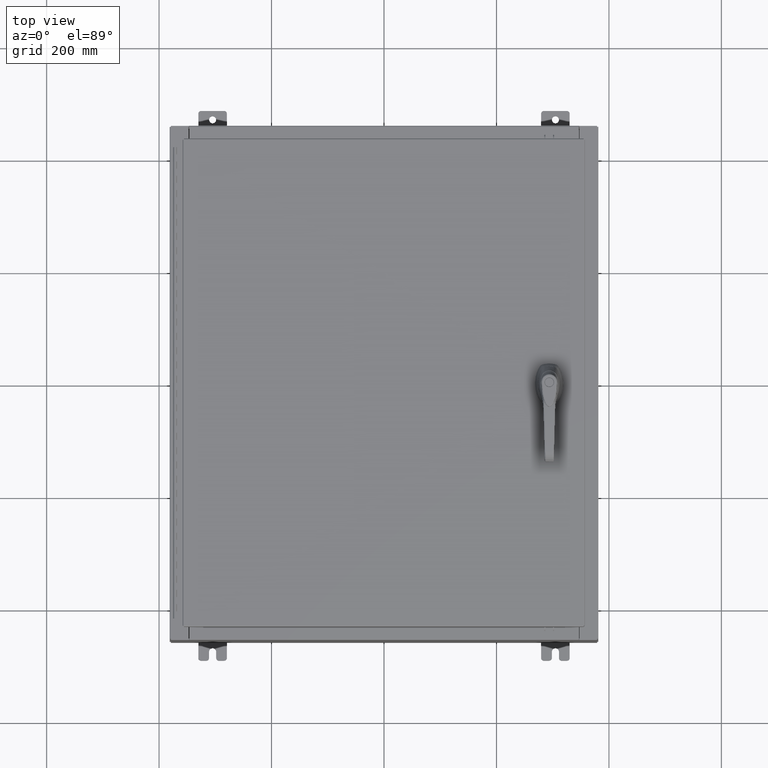
[diagram: clean part render]
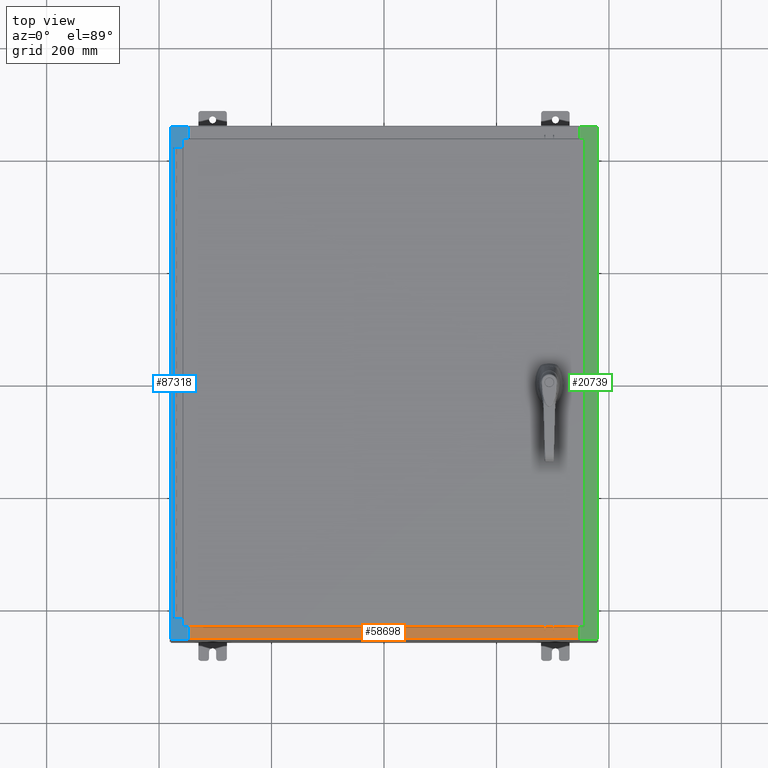
[diagram: same view with three faces highlighted in distinct colors, each labeled with its STEP entity id]
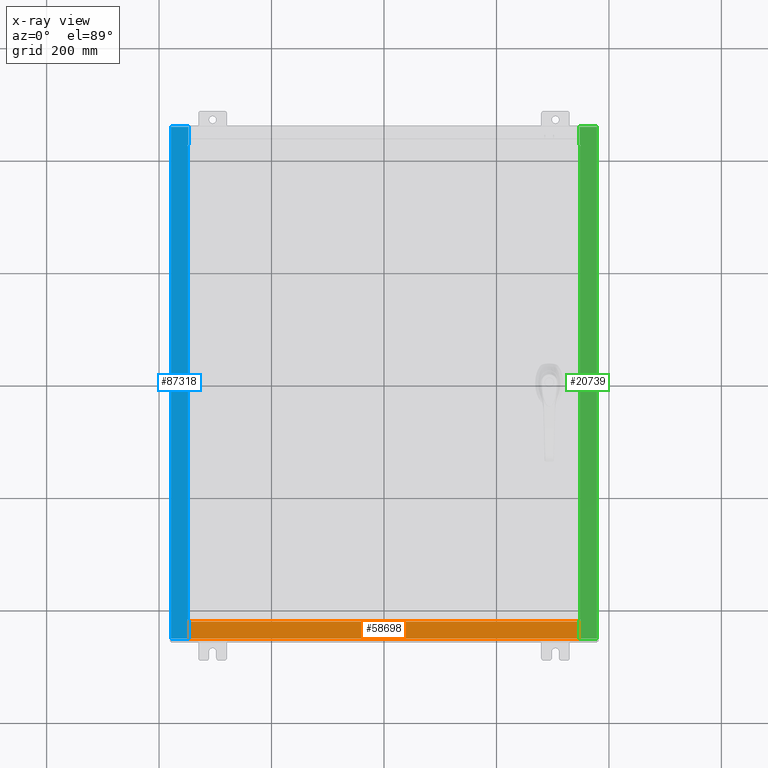
[diagram: x-ray of the same camera — body ghosted, the three highlighted faces saturated]
A machine part, top view with three faces highlighted in distinct colors.
The next image is the same camera in x-ray (body ghosted, the three faces saturated) — at least one of them is partly hidden behind the body in this view.
Their STEP definitions:

[orange] entity #58698 — the highlighted planar face has unit normal (-0, -0, 1).
#1316 = ORIENTED_EDGE ( 'NONE', *, *, #13318, .F. ) ;
#3166 = EDGE_CURVE ( 'NONE', #69091, #89406, #43542, .T. ) ;
#6162 = VECTOR ( 'NONE', #72674, 39.37007874015748100 ) ;
#6867 = DIRECTION ( 'NONE',  ( 0.0000000000000000000, -1.000000000000000000, 3.566381192773190000E-015 ) ) ;
#10266 = CARTESIAN_POINT ( 'NONE',  ( -13.63719999999999800, -1.287299999999999200, 6.000000000000003600 ) ) ;
#10968 = DIRECTION ( 'NONE',  ( -1.000000000000000000, 4.006464660875052000E-017, -1.428858021605520200E-031 ) ) ;
#13318 = EDGE_CURVE ( 'NONE', #89406, #30030, #45279, .T. ) ;
#16070 = PLANE ( 'NONE',  #75212 ) ;
#17727 = FACE_OUTER_BOUND ( 'NONE', #68220, .T. ) ;
#24306 = CARTESIAN_POINT ( 'NONE',  ( 13.63720000000000400, -0.08769999999999937600, 5.999999999999999100 ) ) ;
#30030 = VERTEX_POINT ( 'NONE', #10266 ) ;
#36265 = DIRECTION ( 'NONE',  ( -0.0000000000000000000, -1.000000000000000000, 3.566381192773190000E-015 ) ) ;
#43542 = LINE ( 'NONE', #103385, #63047 ) ;
#45279 = LINE ( 'NONE', #107639, #96254 ) ;
#46158 = CARTESIAN_POINT ( 'NONE',  ( -13.63719999999999800, -0.08769999999999972300, 5.999999999999999100 ) ) ;
#53368 = CARTESIAN_POINT ( 'NONE',  ( -13.63719999999999800, -0.07469999999999973900, 5.999999999999999100 ) ) ;
#58698 = ADVANCED_FACE ( 'NONE', ( #17727 ), #16070, .T. ) ;
#62827 = EDGE_CURVE ( 'NONE', #30030, #79166, #79658, .T. ) ;
#63047 = VECTOR ( 'NONE', #36265, 39.37007874015748100 ) ;
#64316 = DIRECTION ( 'NONE',  ( 0.0000000000000000000, 3.566381192773190000E-015, 1.000000000000000000 ) ) ;
#68220 = EDGE_LOOP ( 'NONE', ( #71506, #1316, #116477, #120204 ) ) ;
#69091 = VERTEX_POINT ( 'NONE', #24306 ) ;
#71506 = ORIENTED_EDGE ( 'NONE', *, *, #62827, .F. ) ;
#72674 = DIRECTION ( 'NONE',  ( -0.0000000000000000000, 1.000000000000000000, -3.566381192773190000E-015 ) ) ;
#75212 = AXIS2_PLACEMENT_3D ( 'NONE', #121368, #64316, #6867 ) ;
#79166 = VERTEX_POINT ( 'NONE', #46158 ) ;
#79658 = LINE ( 'NONE', #53368, #6162 ) ;
#87735 = CARTESIAN_POINT ( 'NONE',  ( -3.513669507588266700E-018, -0.08769999999999972300, 5.999999999999999100 ) ) ;
#88482 = EDGE_CURVE ( 'NONE', #69091, #79166, #107102, .T. ) ;
#89406 = VERTEX_POINT ( 'NONE', #117419 ) ;
#96254 = VECTOR ( 'NONE', #97963, 39.37007874015748100 ) ;
#97963 = DIRECTION ( 'NONE',  ( -1.000000000000000000, 0.0000000000000000000, 0.0000000000000000000 ) ) ;
#103385 = CARTESIAN_POINT ( 'NONE',  ( 13.63720000000000400, -1.300299999999999800, 6.000000000000003600 ) ) ;
#107102 = LINE ( 'NONE', #87735, #119106 ) ;
#107639 = CARTESIAN_POINT ( 'NONE',  ( 13.63720000000000400, -1.287299999999999900, 6.000000000000003600 ) ) ;
#116477 = ORIENTED_EDGE ( 'NONE', *, *, #3166, .F. ) ;
#117419 = CARTESIAN_POINT ( 'NONE',  ( 13.63720000000000400, -1.287299999999999900, 6.000000000000003600 ) ) ;
#119106 = VECTOR ( 'NONE', #10968, 39.37007874015748100 ) ;
#120204 = ORIENTED_EDGE ( 'NONE', *, *, #88482, .T. ) ;
#121368 = CARTESIAN_POINT ( 'NONE',  ( 0.0000000000000000000, 2.139269213755056400E-014, 5.999999999999999100 ) ) ;

[blue] entity #87318 — the highlighted planar face has unit normal (0, 0, -1).
#397 = CARTESIAN_POINT ( 'NONE',  ( -13.75005000000004400, -16.63109999999998600, 11.92530000000001200 ) ) ;
#2797 = EDGE_CURVE ( 'NONE', #21384, #100856, #90106, .T. ) ;
#3899 = VECTOR ( 'NONE', #93490, 39.37007874015748100 ) ;
#7318 = VERTEX_POINT ( 'NONE', #9506 ) ;
#9506 = CARTESIAN_POINT ( 'NONE',  ( -14.91230000000004500, -17.92530000000000000, 11.92530000000000000 ) ) ;
#9951 = DIRECTION ( 'NONE',  ( 1.000000000000000000, 0.0000000000000000000, 0.0000000000000000000 ) ) ;
#10876 = CARTESIAN_POINT ( 'NONE',  ( -13.69970000000004400, -17.92530000000000000, 11.92530000000000900 ) ) ;
#11484 = ORIENTED_EDGE ( 'NONE', *, *, #124181, .F. ) ;
#12284 = CARTESIAN_POINT ( 'NONE',  ( -13.69970000000004400, 16.63110000000000000, 11.92530000000000900 ) ) ;
#12709 = DIRECTION ( 'NONE',  ( 0.0000000000000000000, 1.000000000000000000, 0.0000000000000000000 ) ) ;
#13146 = DIRECTION ( 'NONE',  ( -7.132762385546384700E-015, -0.0000000000000000000, 1.000000000000000000 ) ) ;
#13319 = EDGE_CURVE ( 'NONE', #7318, #42945, #22707, .T. ) ;
#14062 = CARTESIAN_POINT ( 'NONE',  ( -13.75005000000004400, 16.61242500000000200, 11.92530000000001200 ) ) ;
#15678 = ORIENTED_EDGE ( 'NONE', *, *, #42679, .F. ) ;
#16841 = VERTEX_POINT ( 'NONE', #31089 ) ;
#20140 = VECTOR ( 'NONE', #117360, 39.37007874015748100 ) ;
#20360 = VECTOR ( 'NONE', #79840, 39.37007874015748100 ) ;
#21384 = VERTEX_POINT ( 'NONE', #12284 ) ;
#22707 = LINE ( 'NONE', #69446, #25744 ) ;
#23441 = VERTEX_POINT ( 'NONE', #90968 ) ;
#23741 = DIRECTION ( 'NONE',  ( 1.000000000000000000, 0.0000000000000000000, 0.0000000000000000000 ) ) ;
#25744 = VECTOR ( 'NONE', #79102, 39.37007874015748100 ) ;
#26040 = ORIENTED_EDGE ( 'NONE', *, *, #2797, .T. ) ;
#26276 = VECTOR ( 'NONE', #9951, 39.37007874015748100 ) ;
#26382 = CARTESIAN_POINT ( 'NONE',  ( -8.532114493236863100E-014, 17.92530000000000000, 11.92530000000010800 ) ) ;
#28963 = LINE ( 'NONE', #106717, #99552 ) ;
#29681 = VECTOR ( 'NONE', #32434, 39.37007874015748100 ) ;
#29947 = AXIS2_PLACEMENT_3D ( 'NONE', #70005, #41490, #108617 ) ;
#31089 = CARTESIAN_POINT ( 'NONE',  ( -13.71270000000004600, -16.59374999999998900, 11.92530000000001200 ) ) ;
#32166 = CARTESIAN_POINT ( 'NONE',  ( -13.69970000000004400, 17.92530000000000000, 11.92530000000000900 ) ) ;
#32434 = DIRECTION ( 'NONE',  ( -1.000000000000000000, 0.0000000000000000000, 4.340572780400098900E-014 ) ) ;
#32950 = VERTEX_POINT ( 'NONE', #121677 ) ;
#33005 = VERTEX_POINT ( 'NONE', #36133 ) ;
#34982 = CARTESIAN_POINT ( 'NONE',  ( -13.75005000000004400, 16.63110000000000000, 11.92530000000000900 ) ) ;
#35270 = LINE ( 'NONE', #107785, #20140 ) ;
#35321 = EDGE_CURVE ( 'NONE', #42945, #82796, #92424, .T. ) ;
#36133 = CARTESIAN_POINT ( 'NONE',  ( -13.75005000000004400, 16.59375000000000000, 11.92530000000000900 ) ) ;
#36981 = EDGE_CURVE ( 'NONE', #32950, #111784, #104702, .T. ) ;
#41490 = DIRECTION ( 'NONE',  ( 7.132762385546384700E-015, 0.0000000000000000000, -1.000000000000000000 ) ) ;
#41915 = ORIENTED_EDGE ( 'NONE', *, *, #114477, .F. ) ;
#42679 = EDGE_CURVE ( 'NONE', #23441, #16841, #28963, .T. ) ;
#42945 = VERTEX_POINT ( 'NONE', #10876 ) ;
#45704 = ORIENTED_EDGE ( 'NONE', *, *, #123376, .T. ) ;
#48163 = CARTESIAN_POINT ( 'NONE',  ( -13.75005000000004400, 16.59375000000000000, 11.92530000000001200 ) ) ;
#50059 = LINE ( 'NONE', #397, #53084 ) ;
#50643 = EDGE_LOOP ( 'NONE', ( #41915, #26040, #45704, #102296, #60404, #104667, #80001, #53768, #74178, #15678, #11484, #100541 ) ) ;
#50943 = CARTESIAN_POINT ( 'NONE',  ( -13.69970000000004400, 0.0000000000000000000, 11.92530000000000900 ) ) ;
#51795 = LINE ( 'NONE', #48163, #26276 ) ;
#53084 = VECTOR ( 'NONE', #67532, 39.37007874015748100 ) ;
#53768 = ORIENTED_EDGE ( 'NONE', *, *, #36981, .F. ) ;
#57434 = CARTESIAN_POINT ( 'NONE',  ( -13.69970000000004400, -16.63109999999998600, 11.92530000000000900 ) ) ;
#59718 = AXIS2_PLACEMENT_3D ( 'NONE', #14062, #81236, #23741 ) ;
#60404 = ORIENTED_EDGE ( 'NONE', *, *, #13319, .T. ) ;
#61295 = CIRCLE ( 'NONE', #59718, 0.01867499999999949400 ) ;
#61391 = CARTESIAN_POINT ( 'NONE',  ( -13.69970000000004400, 16.63110000000000000, 11.92530000000000900 ) ) ;
#66482 = CARTESIAN_POINT ( 'NONE',  ( -13.69970000000004400, 0.0000000000000000000, 11.92530000000000900 ) ) ;
#67532 = DIRECTION ( 'NONE',  ( 1.000000000000000000, 0.0000000000000000000, -4.340572780400098900E-014 ) ) ;
#68066 = AXIS2_PLACEMENT_3D ( 'NONE', #70670, #13146, #80300 ) ;
#69220 = EDGE_CURVE ( 'NONE', #7318, #74008, #35270, .T. ) ;
#69446 = CARTESIAN_POINT ( 'NONE',  ( -8.532114493236863100E-014, -17.92530000000000000, 11.92530000000010800 ) ) ;
#69881 = VECTOR ( 'NONE', #12709, 39.37007874015748100 ) ;
#70005 = CARTESIAN_POINT ( 'NONE',  ( -8.532114493236863100E-014, 0.0000000000000000000, 11.92530000000010800 ) ) ;
#70670 = CARTESIAN_POINT ( 'NONE',  ( -13.75005000000004400, -16.61242499999998800, 11.92530000000001200 ) ) ;
#73491 = CARTESIAN_POINT ( 'NONE',  ( -14.91230000000004500, 17.92530000000000000, 11.92530000000000000 ) ) ;
#74008 = VERTEX_POINT ( 'NONE', #73491 ) ;
#74178 = ORIENTED_EDGE ( 'NONE', *, *, #85680, .F. ) ;
#76146 = DIRECTION ( 'NONE',  ( 0.0000000000000000000, 1.000000000000000000, 0.0000000000000000000 ) ) ;
#77212 = FACE_OUTER_BOUND ( 'NONE', #50643, .T. ) ;
#77389 = LINE ( 'NONE', #26382, #3899 ) ;
#77738 = DIRECTION ( 'NONE',  ( -0.0000000000000000000, -1.000000000000000000, -0.0000000000000000000 ) ) ;
#79102 = DIRECTION ( 'NONE',  ( 1.000000000000000000, -0.0000000000000000000, 7.132762385546384700E-015 ) ) ;
#79840 = DIRECTION ( 'NONE',  ( -1.000000000000000000, 0.0000000000000000000, 0.0000000000000000000 ) ) ;
#80001 = ORIENTED_EDGE ( 'NONE', *, *, #97551, .F. ) ;
#80300 = DIRECTION ( 'NONE',  ( 1.000000000000000000, 0.0000000000000000000, 0.0000000000000000000 ) ) ;
#81236 = DIRECTION ( 'NONE',  ( -7.132762385546384700E-015, -0.0000000000000000000, 1.000000000000000000 ) ) ;
#82796 = VERTEX_POINT ( 'NONE', #57434 ) ;
#85680 = EDGE_CURVE ( 'NONE', #16841, #32950, #119458, .T. ) ;
#87318 = ADVANCED_FACE ( 'NONE', ( #77212 ), #98961, .F. ) ;
#89070 = CARTESIAN_POINT ( 'NONE',  ( -13.71270000000004600, -16.59374999999998900, 11.92530000000001200 ) ) ;
#90106 = LINE ( 'NONE', #66482, #112606 ) ;
#90968 = CARTESIAN_POINT ( 'NONE',  ( -13.71270000000004600, 16.59375000000000000, 11.92530000000001200 ) ) ;
#92424 = LINE ( 'NONE', #50943, #69881 ) ;
#92592 = VERTEX_POINT ( 'NONE', #34982 ) ;
#93490 = DIRECTION ( 'NONE',  ( -1.000000000000000000, 0.0000000000000000000, -7.132762385546384700E-015 ) ) ;
#97175 = CARTESIAN_POINT ( 'NONE',  ( -13.75005000000004400, -16.63109999999998600, 11.92530000000000900 ) ) ;
#97551 = EDGE_CURVE ( 'NONE', #111784, #82796, #50059, .T. ) ;
#98961 = PLANE ( 'NONE',  #29947 ) ;
#99552 = VECTOR ( 'NONE', #77738, 39.37007874015748100 ) ;
#100541 = ORIENTED_EDGE ( 'NONE', *, *, #103076, .F. ) ;
#100856 = VERTEX_POINT ( 'NONE', #32166 ) ;
#102296 = ORIENTED_EDGE ( 'NONE', *, *, #69220, .F. ) ;
#103076 = EDGE_CURVE ( 'NONE', #92592, #33005, #61295, .T. ) ;
#103289 = LINE ( 'NONE', #61391, #29681 ) ;
#104667 = ORIENTED_EDGE ( 'NONE', *, *, #35321, .T. ) ;
#104702 = CIRCLE ( 'NONE', #68066, 0.01867499999999949400 ) ;
#106717 = CARTESIAN_POINT ( 'NONE',  ( -13.71270000000004600, 16.59374999999999600, 11.92530000000001200 ) ) ;
#107785 = CARTESIAN_POINT ( 'NONE',  ( -14.91230000000004500, 17.92530000000000000, 11.92530000000000000 ) ) ;
#108617 = DIRECTION ( 'NONE',  ( -1.000000000000000000, 0.0000000000000000000, -7.132762385546384700E-015 ) ) ;
#111784 = VERTEX_POINT ( 'NONE', #97175 ) ;
#112606 = VECTOR ( 'NONE', #76146, 39.37007874015748100 ) ;
#114477 = EDGE_CURVE ( 'NONE', #21384, #92592, #103289, .T. ) ;
#117360 = DIRECTION ( 'NONE',  ( -0.0000000000000000000, 1.000000000000000000, -0.0000000000000000000 ) ) ;
#119458 = LINE ( 'NONE', #89070, #20360 ) ;
#121677 = CARTESIAN_POINT ( 'NONE',  ( -13.75005000000004400, -16.59374999999998900, 11.92530000000000900 ) ) ;
#123376 = EDGE_CURVE ( 'NONE', #100856, #74008, #77389, .T. ) ;
#124181 = EDGE_CURVE ( 'NONE', #33005, #23441, #51795, .T. ) ;

[green] entity #20739 — the highlighted planar face has unit normal (-0, 0, -1).
#483 = EDGE_CURVE ( 'NONE', #94055, #70344, #74289, .T. ) ;
#2778 = DIRECTION ( 'NONE',  ( -1.000000000000000000, 0.0000000000000000000, 0.0000000000000000000 ) ) ;
#3249 = DIRECTION ( 'NONE',  ( -1.000000000000000000, 0.0000000000000000000, 7.132762385546384700E-015 ) ) ;
#4397 = VECTOR ( 'NONE', #72492, 39.37007874015748100 ) ;
#5490 = VERTEX_POINT ( 'NONE', #102791 ) ;
#7674 = DIRECTION ( 'NONE',  ( -0.0000000000000000000, -1.000000000000000000, -0.0000000000000000000 ) ) ;
#9689 = VERTEX_POINT ( 'NONE', #63617 ) ;
#10864 = DIRECTION ( 'NONE',  ( 0.0000000000000000000, -1.000000000000000000, 0.0000000000000000000 ) ) ;
#11110 = ORIENTED_EDGE ( 'NONE', *, *, #46362, .F. ) ;
#15491 = DIRECTION ( 'NONE',  ( 7.132762385546384700E-015, 0.0000000000000000000, 1.000000000000000000 ) ) ;
#15516 = LINE ( 'NONE', #78003, #66527 ) ;
#15593 = DIRECTION ( 'NONE',  ( -0.0000000000000000000, 1.000000000000000000, -0.0000000000000000000 ) ) ;
#16272 = EDGE_CURVE ( 'NONE', #53729, #29566, #66788, .T. ) ;
#17247 = CARTESIAN_POINT ( 'NONE',  ( 14.91230000000003900, -17.92530000000000000, 11.92530000000000000 ) ) ;
#18734 = VECTOR ( 'NONE', #24170, 39.37007874015748100 ) ;
#19481 = VECTOR ( 'NONE', #108811, 39.37007874015748100 ) ;
#20739 = ADVANCED_FACE ( 'NONE', ( #45211 ), #50648, .F. ) ;
#21428 = EDGE_CURVE ( 'NONE', #22802, #29566, #96069, .T. ) ;
#22054 = CARTESIAN_POINT ( 'NONE',  ( 13.75005000000004300, -16.59375000000000000, 11.92530000000000900 ) ) ;
#22455 = ORIENTED_EDGE ( 'NONE', *, *, #483, .F. ) ;
#22539 = EDGE_CURVE ( 'NONE', #48137, #85245, #74910, .T. ) ;
#22724 = CARTESIAN_POINT ( 'NONE',  ( 13.75005000000004300, 16.59375000000000000, 11.92530000000000900 ) ) ;
#22802 = VERTEX_POINT ( 'NONE', #107457 ) ;
#24170 = DIRECTION ( 'NONE',  ( -1.000000000000000000, 4.340572780399910900E-014, 0.0000000000000000000 ) ) ;
#24991 = DIRECTION ( 'NONE',  ( 7.132762385546384700E-015, 0.0000000000000000000, 1.000000000000000000 ) ) ;
#25270 = CARTESIAN_POINT ( 'NONE',  ( 13.71270000000004300, -16.59375000000000000, 11.92530000000000900 ) ) ;
#26977 = ORIENTED_EDGE ( 'NONE', *, *, #120755, .F. ) ;
#27402 = DIRECTION ( 'NONE',  ( 1.000000000000000000, 0.0000000000000000000, 0.0000000000000000000 ) ) ;
#27810 = ORIENTED_EDGE ( 'NONE', *, *, #59243, .F. ) ;
#29566 = VERTEX_POINT ( 'NONE', #89636 ) ;
#30886 = ORIENTED_EDGE ( 'NONE', *, *, #41846, .T. ) ;
#32026 = CARTESIAN_POINT ( 'NONE',  ( 13.69970000000004100, 0.0000000000000000000, 11.92530000000000900 ) ) ;
#34542 = CARTESIAN_POINT ( 'NONE',  ( 14.91230000000003900, -17.92530000000000000, 11.92530000000000000 ) ) ;
#35737 = CIRCLE ( 'NONE', #92126, 0.01867499999999949400 ) ;
#38131 = CARTESIAN_POINT ( 'NONE',  ( 8.532114493236863100E-014, 17.92530000000000000, 11.92530000000010800 ) ) ;
#38289 = LINE ( 'NONE', #38131, #86293 ) ;
#41846 = EDGE_CURVE ( 'NONE', #53809, #70344, #60655, .T. ) ;
#45211 = FACE_OUTER_BOUND ( 'NONE', #110200, .T. ) ;
#45546 = CARTESIAN_POINT ( 'NONE',  ( 13.75005000000004300, -16.63110000000000000, 11.92530000000000900 ) ) ;
#46362 = EDGE_CURVE ( 'NONE', #9689, #72869, #112557, .T. ) ;
#48137 = VERTEX_POINT ( 'NONE', #64690 ) ;
#49260 = CARTESIAN_POINT ( 'NONE',  ( 13.71270000000004300, -16.59375000000000000, 11.92530000000000900 ) ) ;
#50491 = EDGE_CURVE ( 'NONE', #85245, #9689, #53392, .T. ) ;
#50648 = PLANE ( 'NONE',  #69539 ) ;
#53392 = CIRCLE ( 'NONE', #122979, 0.01867499999999949400 ) ;
#53729 = VERTEX_POINT ( 'NONE', #105122 ) ;
#53809 = VERTEX_POINT ( 'NONE', #87418 ) ;
#59243 = EDGE_CURVE ( 'NONE', #95328, #53729, #35737, .T. ) ;
#59606 = ORIENTED_EDGE ( 'NONE', *, *, #97672, .T. ) ;
#60655 = LINE ( 'NONE', #62172, #108713 ) ;
#60710 = DIRECTION ( 'NONE',  ( -7.132762385546384700E-015, 0.0000000000000000000, -1.000000000000000000 ) ) ;
#61639 = CARTESIAN_POINT ( 'NONE',  ( 14.91230000000003900, 17.92530000000000000, 11.92530000000000000 ) ) ;
#62172 = CARTESIAN_POINT ( 'NONE',  ( 8.532114493236863100E-014, -17.92530000000000000, 11.92530000000010800 ) ) ;
#63471 = ORIENTED_EDGE ( 'NONE', *, *, #77314, .T. ) ;
#63617 = CARTESIAN_POINT ( 'NONE',  ( 13.75005000000004300, -16.59375000000000000, 11.92530000000000900 ) ) ;
#64543 = VECTOR ( 'NONE', #2778, 39.37007874015748100 ) ;
#64690 = CARTESIAN_POINT ( 'NONE',  ( 13.69970000000004100, -16.63110000000000400, 11.92530000000000900 ) ) ;
#66527 = VECTOR ( 'NONE', #10864, 39.37007874015748100 ) ;
#66788 = LINE ( 'NONE', #100956, #18734 ) ;
#69539 = AXIS2_PLACEMENT_3D ( 'NONE', #98891, #60710, #3249 ) ;
#70344 = VERTEX_POINT ( 'NONE', #34542 ) ;
#72492 = DIRECTION ( 'NONE',  ( 1.000000000000000000, 4.340572780399910900E-014, 0.0000000000000000000 ) ) ;
#72869 = VERTEX_POINT ( 'NONE', #49260 ) ;
#73007 = CARTESIAN_POINT ( 'NONE',  ( 13.75005000000004300, 16.61242500000000200, 11.92530000000000900 ) ) ;
#74289 = LINE ( 'NONE', #17247, #93770 ) ;
#74910 = LINE ( 'NONE', #91380, #4397 ) ;
#77314 = EDGE_CURVE ( 'NONE', #94055, #22802, #38289, .T. ) ;
#78003 = CARTESIAN_POINT ( 'NONE',  ( 13.69970000000004100, 0.0000000000000000000, 11.92530000000000900 ) ) ;
#79354 = LINE ( 'NONE', #25270, #89832 ) ;
#82493 = CARTESIAN_POINT ( 'NONE',  ( 13.75005000000004300, -16.61242500000000200, 11.92530000000000900 ) ) ;
#82661 = DIRECTION ( 'NONE',  ( 1.000000000000000000, 0.0000000000000000000, 0.0000000000000000000 ) ) ;
#84707 = ORIENTED_EDGE ( 'NONE', *, *, #22539, .F. ) ;
#84893 = CARTESIAN_POINT ( 'NONE',  ( 13.71270000000004300, 16.59375000000000000, 11.92530000000000900 ) ) ;
#85245 = VERTEX_POINT ( 'NONE', #45546 ) ;
#86293 = VECTOR ( 'NONE', #95600, 39.37007874015748100 ) ;
#87418 = CARTESIAN_POINT ( 'NONE',  ( 13.69970000000004100, -17.92530000000000000, 11.92530000000000900 ) ) ;
#87856 = ORIENTED_EDGE ( 'NONE', *, *, #16272, .F. ) ;
#89636 = CARTESIAN_POINT ( 'NONE',  ( 13.69970000000004100, 16.63110000000000400, 11.92530000000000900 ) ) ;
#89832 = VECTOR ( 'NONE', #15593, 39.37007874015748100 ) ;
#91380 = CARTESIAN_POINT ( 'NONE',  ( 13.69970000000004100, -16.63110000000000400, 11.92530000000000900 ) ) ;
#92126 = AXIS2_PLACEMENT_3D ( 'NONE', #73007, #15491, #82661 ) ;
#92133 = DIRECTION ( 'NONE',  ( 1.000000000000000000, 0.0000000000000000000, 0.0000000000000000000 ) ) ;
#93770 = VECTOR ( 'NONE', #7674, 39.37007874015748100 ) ;
#94055 = VERTEX_POINT ( 'NONE', #61639 ) ;
#95328 = VERTEX_POINT ( 'NONE', #22724 ) ;
#95600 = DIRECTION ( 'NONE',  ( -1.000000000000000000, 0.0000000000000000000, 7.132762385546384700E-015 ) ) ;
#96069 = LINE ( 'NONE', #32026, #19481 ) ;
#97672 = EDGE_CURVE ( 'NONE', #48137, #53809, #15516, .T. ) ;
#98891 = CARTESIAN_POINT ( 'NONE',  ( 8.532114493236863100E-014, 0.0000000000000000000, 11.92530000000010800 ) ) ;
#99336 = ORIENTED_EDGE ( 'NONE', *, *, #21428, .T. ) ;
#100956 = CARTESIAN_POINT ( 'NONE',  ( 13.75005000000004300, 16.63110000000000000, 11.92530000000000900 ) ) ;
#101109 = LINE ( 'NONE', #84893, #104104 ) ;
#102791 = CARTESIAN_POINT ( 'NONE',  ( 13.71270000000004300, 16.59375000000000000, 11.92530000000000900 ) ) ;
#104104 = VECTOR ( 'NONE', #27402, 39.37007874015748100 ) ;
#105122 = CARTESIAN_POINT ( 'NONE',  ( 13.75005000000004300, 16.63110000000000000, 11.92530000000000900 ) ) ;
#106451 = ORIENTED_EDGE ( 'NONE', *, *, #50491, .F. ) ;
#107457 = CARTESIAN_POINT ( 'NONE',  ( 13.69970000000004100, 17.92530000000000000, 11.92530000000000900 ) ) ;
#108693 = EDGE_CURVE ( 'NONE', #5490, #95328, #101109, .T. ) ;
#108713 = VECTOR ( 'NONE', #109183, 39.37007874015748100 ) ;
#108811 = DIRECTION ( 'NONE',  ( 0.0000000000000000000, -1.000000000000000000, 0.0000000000000000000 ) ) ;
#109183 = DIRECTION ( 'NONE',  ( 1.000000000000000000, 0.0000000000000000000, -7.132762385546384700E-015 ) ) ;
#110200 = EDGE_LOOP ( 'NONE', ( #84707, #59606, #30886, #22455, #63471, #99336, #87856, #27810, #117960, #26977, #11110, #106451 ) ) ;
#112557 = LINE ( 'NONE', #22054, #64543 ) ;
#117960 = ORIENTED_EDGE ( 'NONE', *, *, #108693, .F. ) ;
#120755 = EDGE_CURVE ( 'NONE', #72869, #5490, #79354, .T. ) ;
#122979 = AXIS2_PLACEMENT_3D ( 'NONE', #82493, #24991, #92133 ) ;